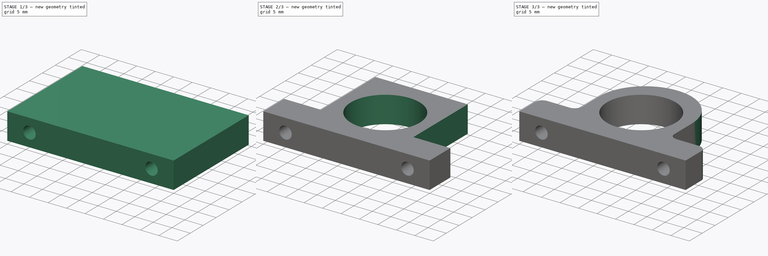
[diagram: build sequence overview — one tinted view per stage of 3, left to right]
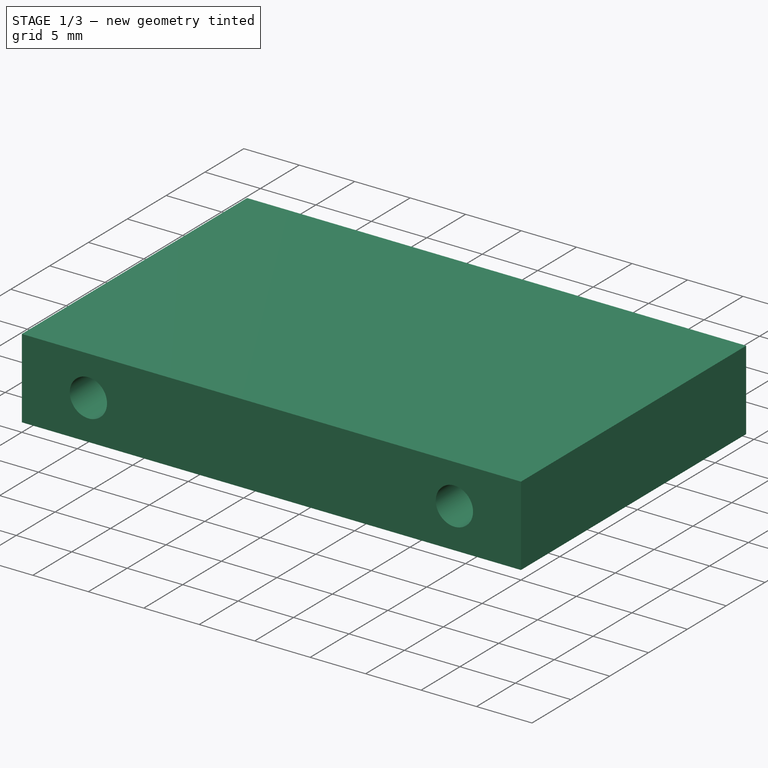
[diagram: stage 1 of 3 — iso view after this stage's code; geometry added in this stage tinted green]
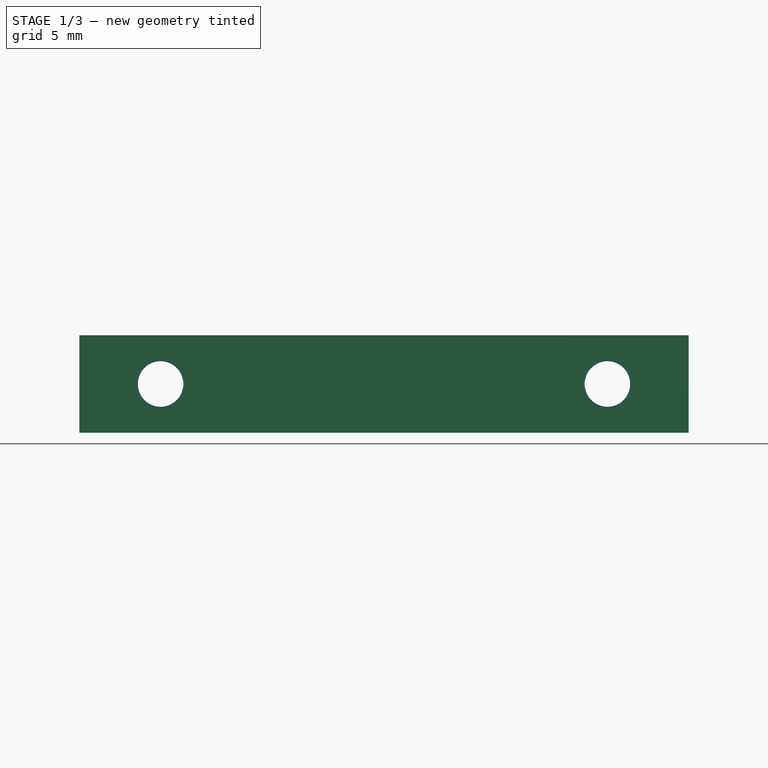
[diagram: stage 1 of 3 — front view after this stage's code; geometry added in this stage tinted green]
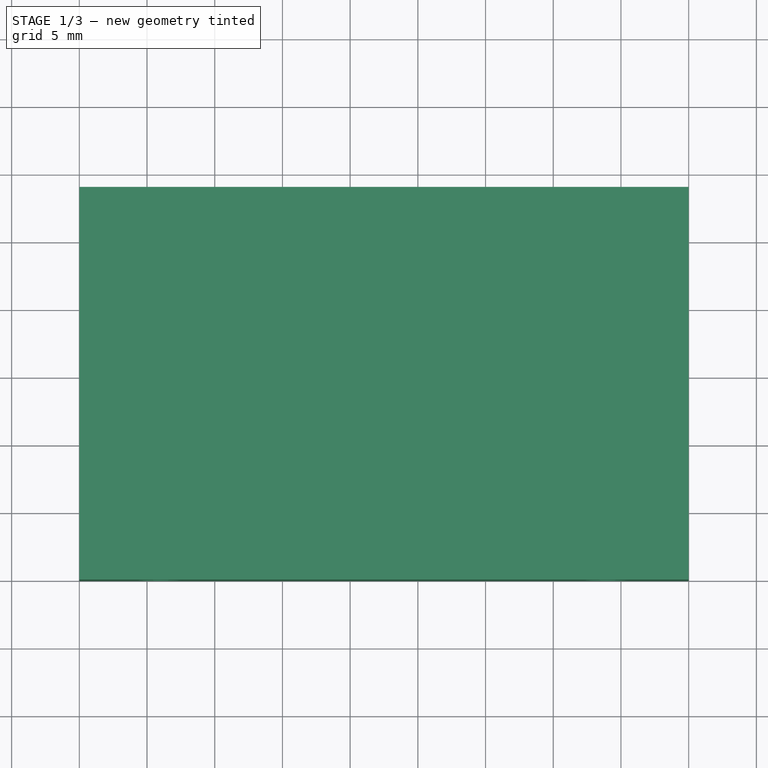
[diagram: stage 1 of 3 — top view after this stage's code; geometry added in this stage tinted green]
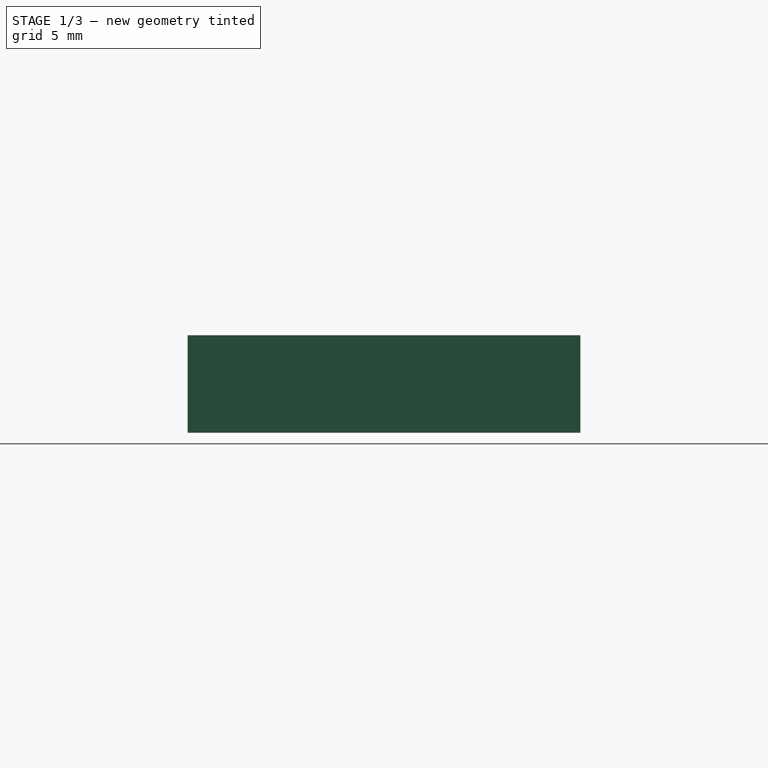
[diagram: stage 1 of 3 — right view after this stage's code; geometry added in this stage tinted green]
FCSTD DOCUMENT  (FreeCAD 0.16R6706 (Git))
Label: bed-leveler-mnt
License: All rights reserved
LicenseURL: http://en.wikipedia.org/wiki/All_rights_reserved
objects: Sketcher::SketchObject×2, PartDesign::Pocket×2, PartDesign::Fillet×2, Part::Box×1
note: 9 computed .brp shape members not serialized (recipe doc carries the construction recipe); baked Part::Feature solids carry a one-line shape summary decoded from their .brp

FEATURE [Part::Box] Box  label="Cube"
  Height = 7.2
  Length = 45
  Width = 29
FEATURE [Sketcher::SketchObject] Sketch
  Placement = pos=(0,0,0) rot=(1,0,0;1.5708rad)
  Support = -> Box [Face3]
  sketch-geometry (2):
    g0: Circle CenterX=6 CenterY=3.6 CenterZ=0 NormalX=0 NormalY=0 NormalZ=1 Radius=1.68
    g1: Circle CenterX=39 CenterY=3.6 CenterZ=0 NormalX=0 NormalY=0 NormalZ=1 Radius=1.68
  constraints (6):
    c: Radius(g0) = 1.68
    c: Equal(g1,g0)
    c: Distance(g0,g1) = 33
    c: DistanceX(g-2,g0) = 6
    c: DistanceY(g-1,g0) = 3.6
    c: DistanceY(g-1,g1) = 3.6
FEATURE [PartDesign::Pocket] Pocket
  Length = 5
  Sketch = -> Sketch
  Type = 1
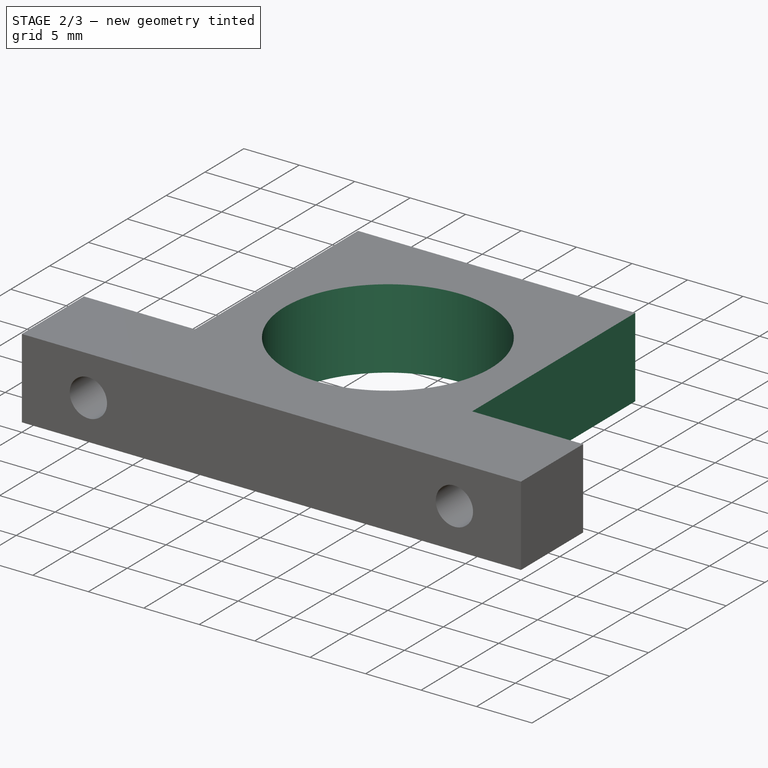
[diagram: stage 2 of 3 — iso view after this stage's code; geometry added in this stage tinted green]
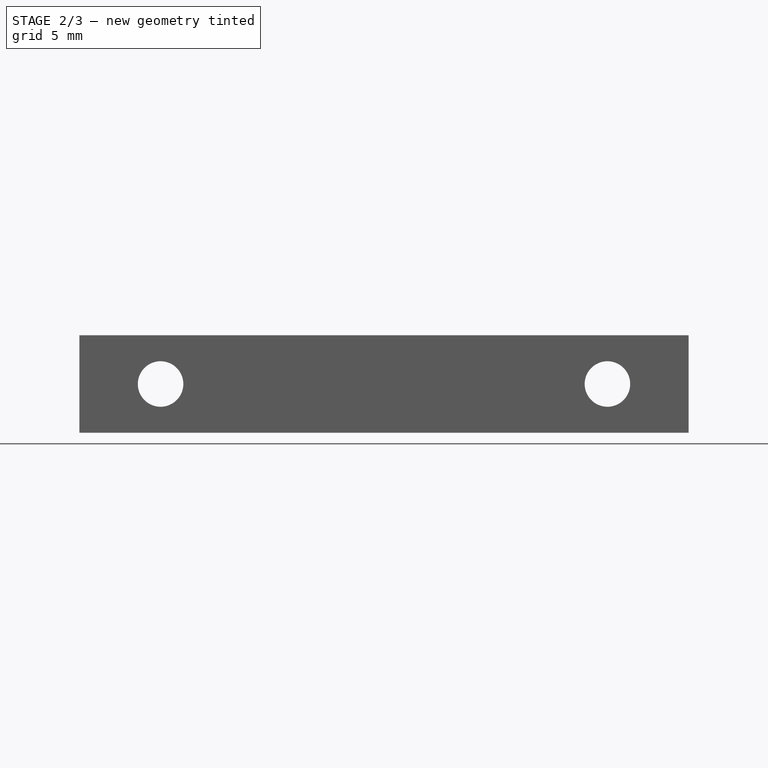
[diagram: stage 2 of 3 — front view after this stage's code; geometry added in this stage tinted green]
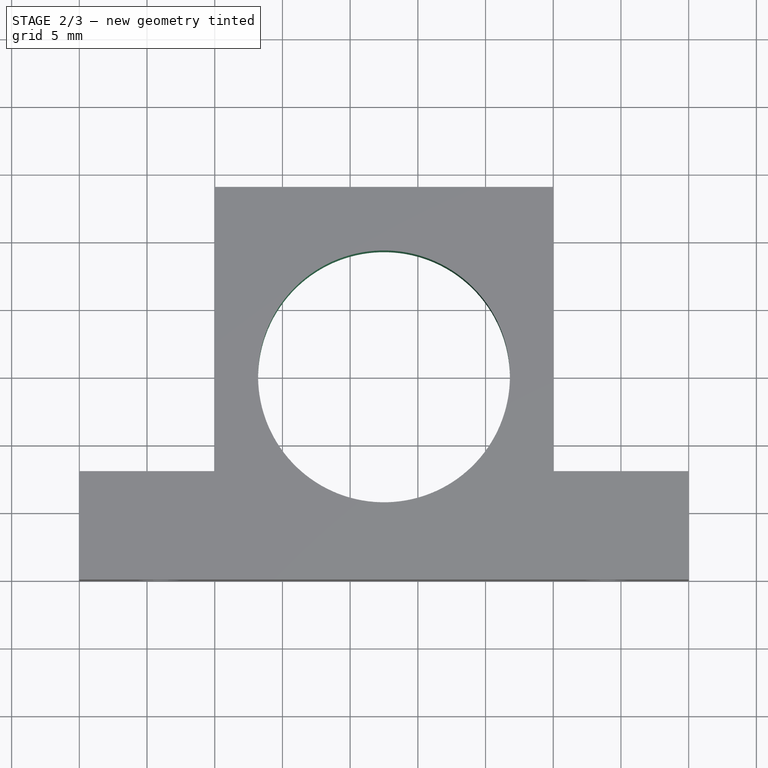
[diagram: stage 2 of 3 — top view after this stage's code; geometry added in this stage tinted green]
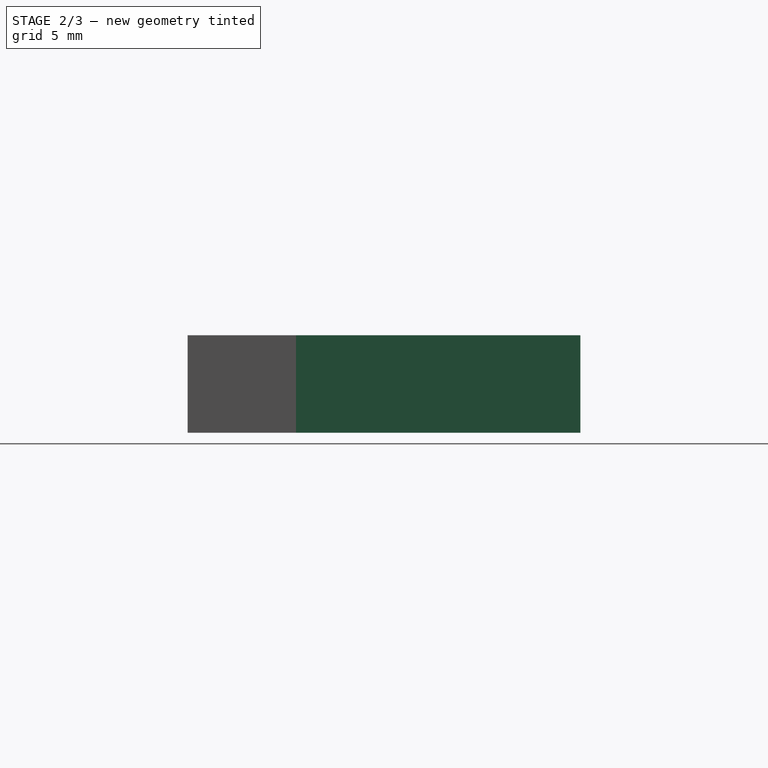
[diagram: stage 2 of 3 — right view after this stage's code; geometry added in this stage tinted green]
FEATURE [Sketcher::SketchObject] Sketch001
  Placement = pos=(0,0,7.2) rot=(0,0,1;0rad)
  Support = -> Pocket [Face3]
  sketch-geometry (9):
    g0: Circle CenterX=22.5 CenterY=15 CenterZ=0 NormalX=0 NormalY=0 NormalZ=1 Radius=9.3
    g1: LineSegment StartX=10 StartY=29 StartZ=0 EndX=0 EndY=29 EndZ=0
    g2: LineSegment StartX=0 StartY=29 StartZ=0 EndX=0 EndY=8 EndZ=0
    g3: LineSegment StartX=0 StartY=8 StartZ=0 EndX=10 EndY=8 EndZ=0
    g4: LineSegment StartX=10 StartY=8 StartZ=0 EndX=10 EndY=29 EndZ=0
    g5: LineSegment StartX=35 StartY=29 StartZ=0 EndX=45 EndY=29 EndZ=0
    g6: LineSegment StartX=45 StartY=29 StartZ=0 EndX=45 EndY=8 EndZ=0
    g7: LineSegment StartX=45 StartY=8 StartZ=0 EndX=35 EndY=8 EndZ=0
    g8: LineSegment StartX=35 StartY=8 StartZ=0 EndX=35 EndY=29 EndZ=0
  constraints (27):
    c: Radius(g0) = 9.3
    c: DistanceY(g-1,g0) = 15
    c: DistanceX(g-2,g0) = 22.5
    c: Coincident(g1,g2)
    c: Coincident(g2,g3)
    c: Coincident(g3,g4)
    c: Coincident(g4,g1)
    c: Horizontal(g1)
    c: Horizontal(g3)
    c: Vertical(g2)
    c: Vertical(g4)
    c: Coincident(g5,g6)
    c: Coincident(g6,g7)
    c: Coincident(g7,g8)
    c: Coincident(g8,g5)
    c: Horizontal(g5)
    c: Horizontal(g7)
    c: Vertical(g6)
    c: Vertical(g8)
    c: DistanceY(g-1,g6) = 8
    c: DistanceY(g-1,g3) = 8
    c: Distance(g1) = 10
    c: Equal(g6,g4)
    c: Distance(g2) = 21
    c: Distance(g7,g3) = 25
    c: Equal(g1,g5)
    c: DistanceX(g-2,g1) = 0
FEATURE [PartDesign::Pocket] Pocket001
  Length = 8
  Sketch = -> Sketch001
  Type = 0
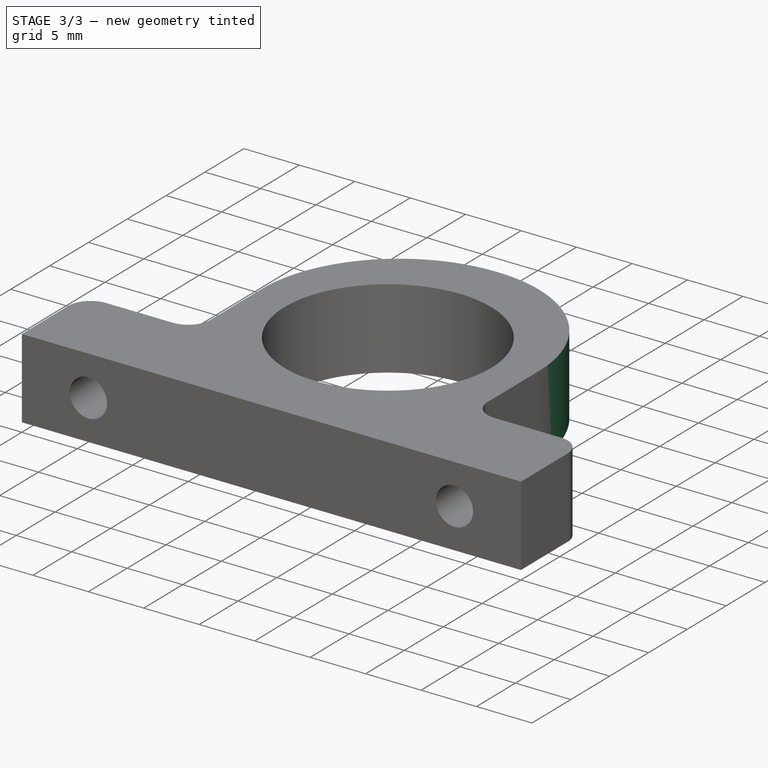
[diagram: stage 3 of 3 — iso view after this stage's code; geometry added in this stage tinted green]
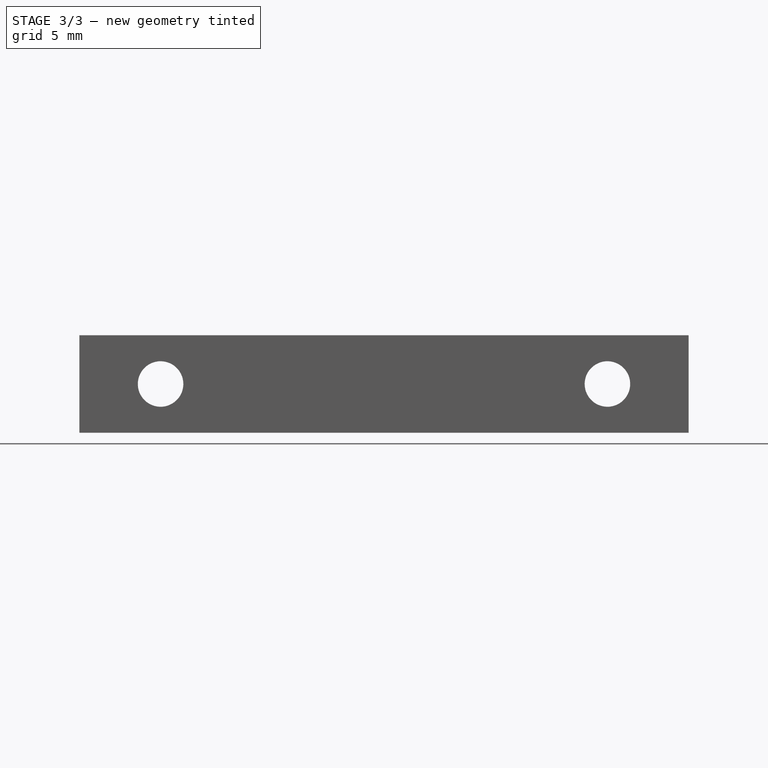
[diagram: stage 3 of 3 — front view after this stage's code; geometry added in this stage tinted green]
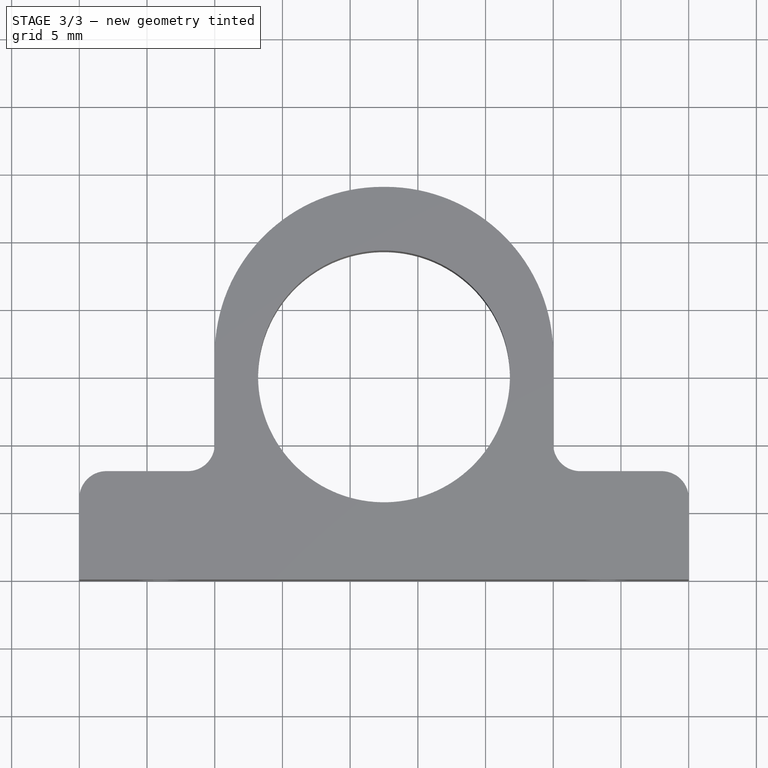
[diagram: stage 3 of 3 — top view after this stage's code; geometry added in this stage tinted green]
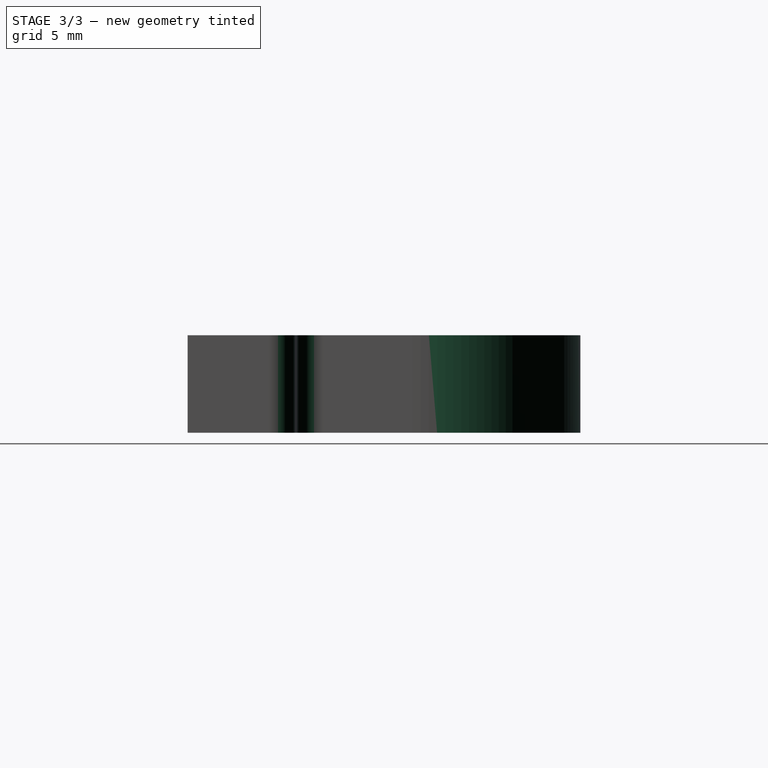
[diagram: stage 3 of 3 — right view after this stage's code; geometry added in this stage tinted green]
FEATURE [PartDesign::Fillet] Fillet
  Base = -> Pocket001 [Edge29,Edge28,Edge13,Edge2]
  Radius = 2
FEATURE [PartDesign::Fillet] Fillet001
  Base = -> Fillet [Edge38,Edge41]
  Radius = 12.4
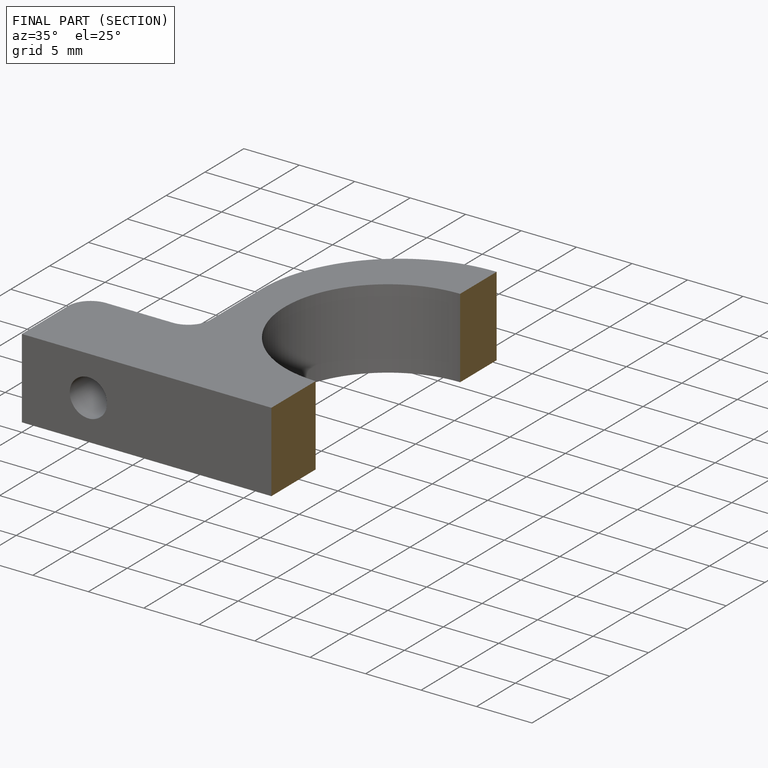
[diagram: finished part — half-section view (interior)]
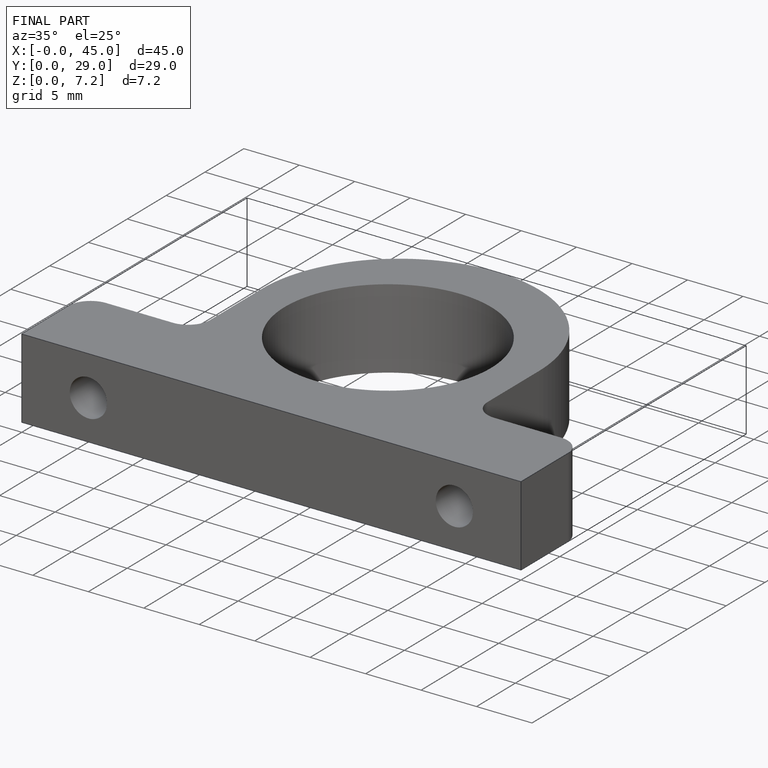
[diagram: finished part — iso view with bounding-box wireframe]
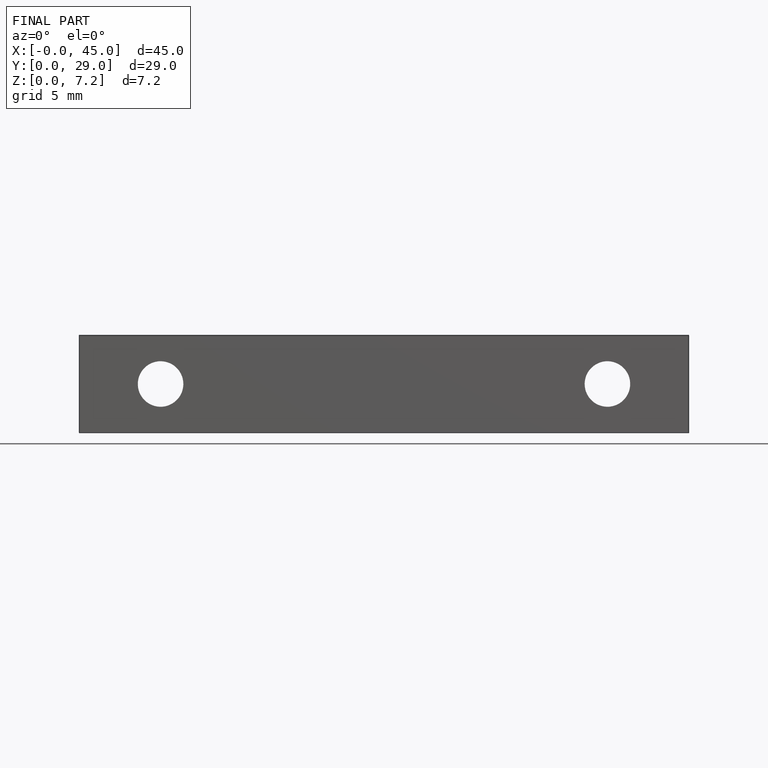
[diagram: finished part — front view with bounding-box wireframe]
